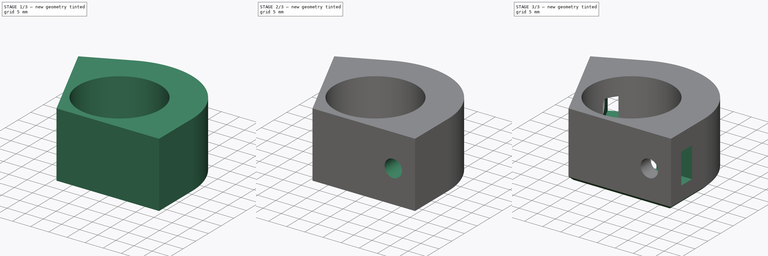
[diagram: build sequence overview — one tinted view per stage of 3, left to right]
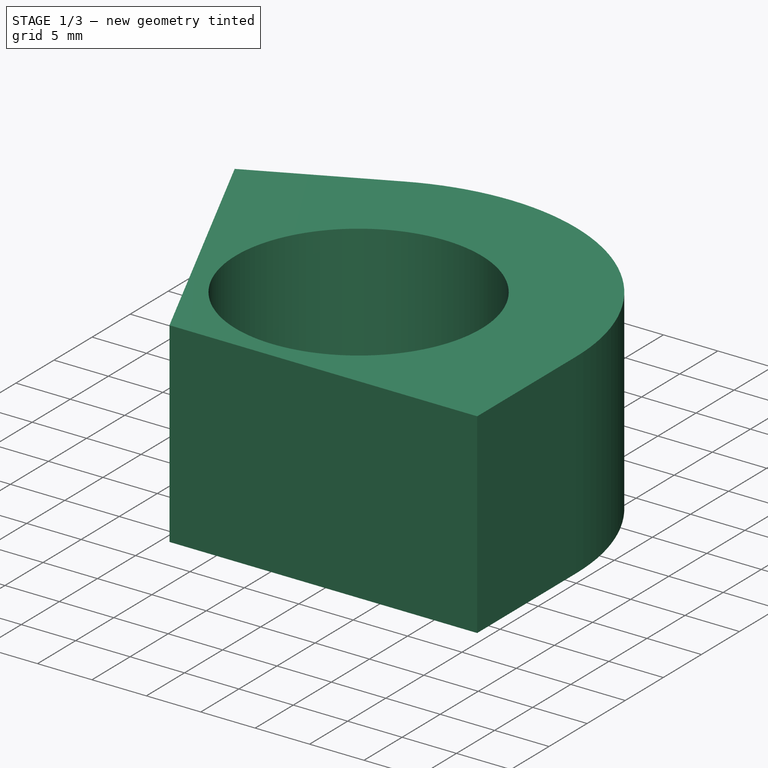
[diagram: stage 1 of 3 — iso view after this stage's code; geometry added in this stage tinted green]
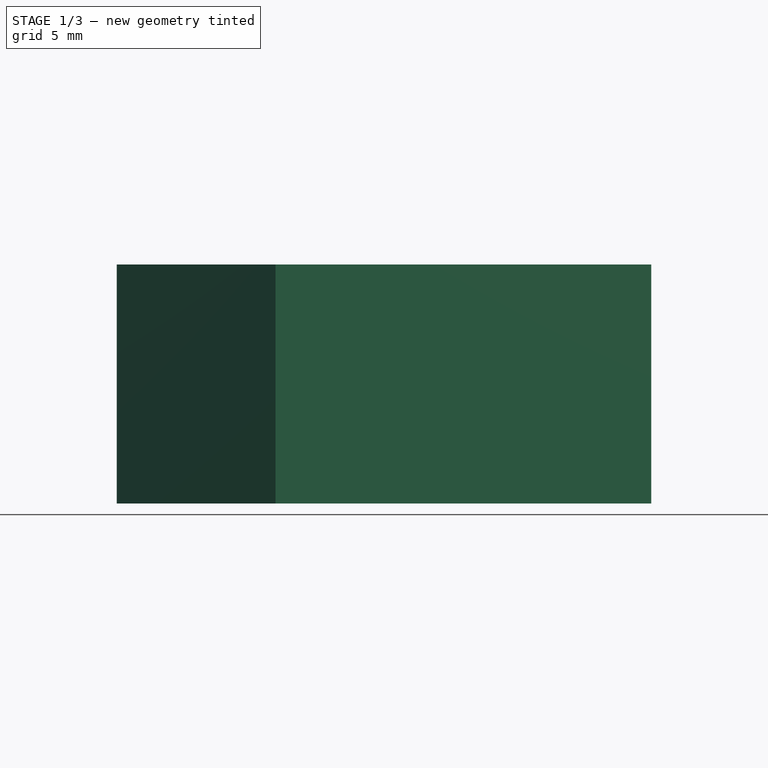
[diagram: stage 1 of 3 — front view after this stage's code; geometry added in this stage tinted green]
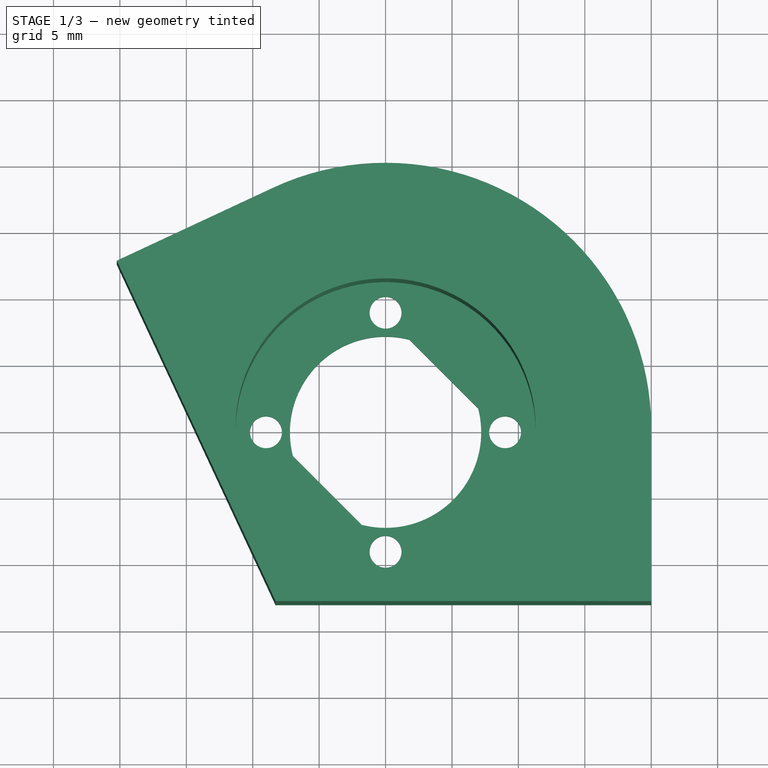
[diagram: stage 1 of 3 — top view after this stage's code; geometry added in this stage tinted green]
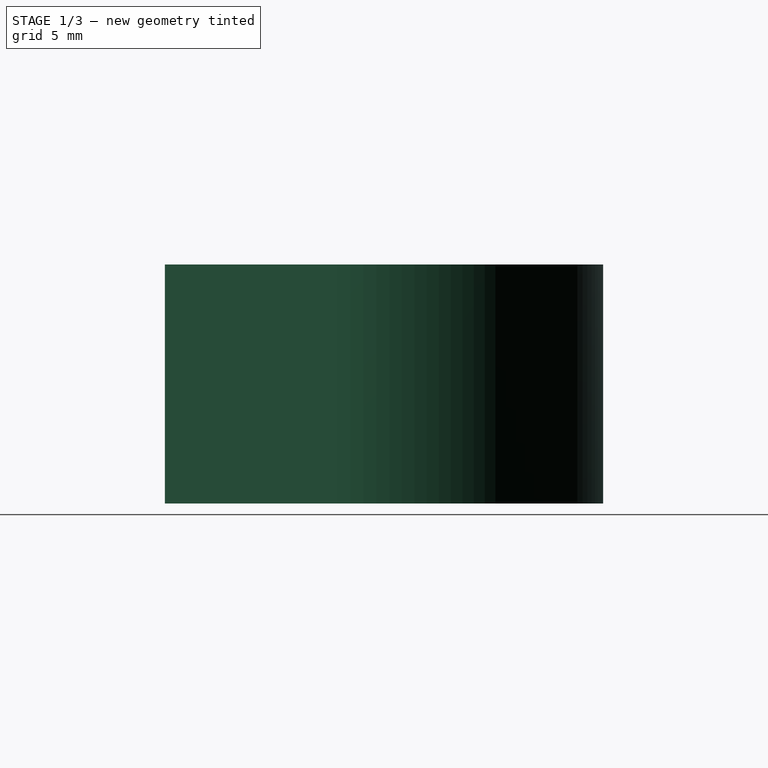
[diagram: stage 1 of 3 — right view after this stage's code; geometry added in this stage tinted green]
FCSTD DOCUMENT  (FreeCAD 0.19R24276 (Git))
Label: motormount
License: All rights reserved
LicenseURL: http://en.wikipedia.org/wiki/All_rights_reserved
objects: Sketcher::SketchObject×7, PartDesign::Pocket×6, PartDesign::Pad×1, PartDesign::Chamfer×1, PartDesign::Body×1
note: 24 computed .brp shape members not serialized (recipe doc carries the construction recipe); baked Part::Feature solids carry a one-line shape summary decoded from their .brp

FEATURE [Sketcher::SketchObject] Sketch
  FullyConstrained = false
  MapMode = 5
  Support = -> [XY_Plane]
  sketch-geometry (10):
    g0: Circle CenterX=0 CenterY=0 CenterZ=0 NormalX=0 NormalY=0 NormalZ=1 AngleXU=0 Radius=11
    g1: Circle CenterX=0 CenterY=9 CenterZ=0 NormalX=0 NormalY=0 NormalZ=1 AngleXU=0 Radius=1.2
    g2: Circle CenterX=0 CenterY=-9 CenterZ=0 NormalX=0 NormalY=0 NormalZ=1 AngleXU=0 Radius=1.2
    g3: Circle CenterX=9 CenterY=0 CenterZ=0 NormalX=0 NormalY=0 NormalZ=1 AngleXU=0 Radius=1.2
    g4: Circle CenterX=-9 CenterY=0 CenterZ=0 NormalX=0 NormalY=0 NormalZ=1 AngleXU=0 Radius=1.2
    g5: LineSegment StartX=-8.28191 StartY=-13 StartZ=0 EndX=-20.2344 EndY=12.6321 EndZ=0
    g6: LineSegment StartX=-8.28191 StartY=-13 StartZ=0 EndX=20 EndY=-13 EndZ=0
    g7: LineSegment StartX=-20.2344 StartY=12.6321 StartZ=0 EndX=-8.45237 EndY=18.1262 EndZ=0
    g8: LineSegment StartX=20 StartY=-13 StartZ=0 EndX=20 EndY=0 EndZ=0
    g9: ArcOfCircle CenterX=0 CenterY=0 CenterZ=0 NormalX=0 NormalY=0 NormalZ=1 AngleXU=0 Radius=20 StartAngle=0 EndAngle=2.00713
  constraints (29):
    c: Coincident(g0,g-1)
    c: Diameter(g0) = 22
    c: PointOnObject(g1,g-2)
    c: PointOnObject(g2,g-2)
    c: PointOnObject(g3,g-1)
    c: PointOnObject(g4,g-1)
    c: Diameter(g1) = 2.4
    c: Equal(g1,g4)
    c: Equal(g1,g2)
    c: Equal(g1,g3)
    c: Coincident(g5,g6)
    c: Horizontal(g6)
    c: Angle(g6,g5) = 2.00713
    c: DistanceY(g5,g-1) = 13
    c: Distance(g-1,g5) = 13
    c: Coincident(g7,g5)
    c: Coincident(g8,g6)
    c: Vertical(g8)
    c: Perpendicular(g5,g7)
    c: Distance(g7) = 13
    c: Distance(g8) = 13
    c: Coincident(g9,g-1)
    c: Coincident(g9,g7)
    c: Coincident(g9,g8)
    c: Radius(g9) = 20
    c: DistanceY(g9,g1) = 9
    c: DistanceY(g2,g9) = 9
    c: DistanceX(g4,g9) = 9
    c: DistanceX(g9,g3) = 9
FEATURE [PartDesign::Pad] Pad
  AllowMultiFace = false
  Direction = (1,1,1)
  Length = 18
  Length2 = 100
  Profile = -> Sketch
  Refine = true
  Type = 0
FEATURE [Sketcher::SketchObject] Sketch001  label="motorcutout"
  FullyConstrained = false
  MapMode = 5
  Placement = pos=(0,0,18) rot=(0,0,1;0rad)
  Support = -> [Pad]
  sketch-geometry (1):
    g0: Circle CenterX=0 CenterY=0 CenterZ=0 NormalX=0 NormalY=0 NormalZ=1 AngleXU=0 Radius=11.3
  constraints (2):
    c: Coincident(g0,g-1)
    c: Diameter(g0) = 22.6
FEATURE [Sketcher::SketchObject] Sketch002
  FullyConstrained = false
  MapMode = 5
  Support = -> [XY_Plane]
  sketch-geometry (4):
    g0: LineSegment StartX=-1.79563 StartY=-6.9725 StartZ=0 EndX=-6.9725 EndY=-1.79563 EndZ=0
    g1: LineSegment StartX=1.79563 StartY=6.9725 StartZ=0 EndX=6.9725 EndY=1.79563 EndZ=0
    g2: ArcOfCircle CenterX=0 CenterY=0 CenterZ=0 NormalX=0 NormalY=0 NormalZ=1 AngleXU=0 Radius=7.2 StartAngle=1.31874 EndAngle=3.39365
    g3: ArcOfCircle CenterX=0 CenterY=0 CenterZ=0 NormalX=0 NormalY=0 NormalZ=1 AngleXU=0 Radius=7.2 StartAngle=4.46034 EndAngle=6.53524
  constraints (12):
    c: Coincident(g2,g0)
    c: Coincident(g2,g1)
    c: Coincident(g3,g2)
    c: Coincident(g3,g1)
    c: Coincident(g3,g0)
    c: Radius(g2) = 7.2
    c: Equal(g2,g3)
    c: Coincident(g2,g-1)
    c: Angle(g1) = -0.785398
    c: Parallel(g1,g0)
    c: Distance(g2,g0) = 6.2
    c: Distance(g2,g1) = 6.2
FEATURE [PartDesign::Pocket] Pocket001
  AllowMultiFace = false
  BaseFeature = -> Pad
  Length = 5
  Length2 = 100
  Midplane = true
  Profile = -> Sketch002
  Refine = true
  Type = 1
FEATURE [PartDesign::Pocket] Pocket
  AllowMultiFace = false
  BaseFeature = -> Pocket001
  Length = 16.5
  Length2 = 100
  Profile = -> Sketch001
  Refine = true
  Type = 0
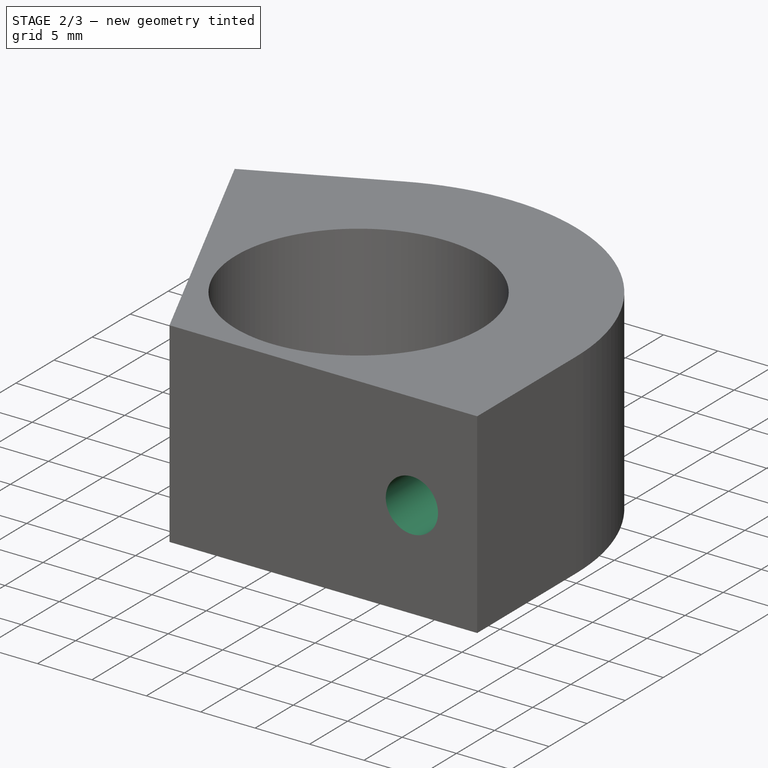
[diagram: stage 2 of 3 — iso view after this stage's code; geometry added in this stage tinted green]
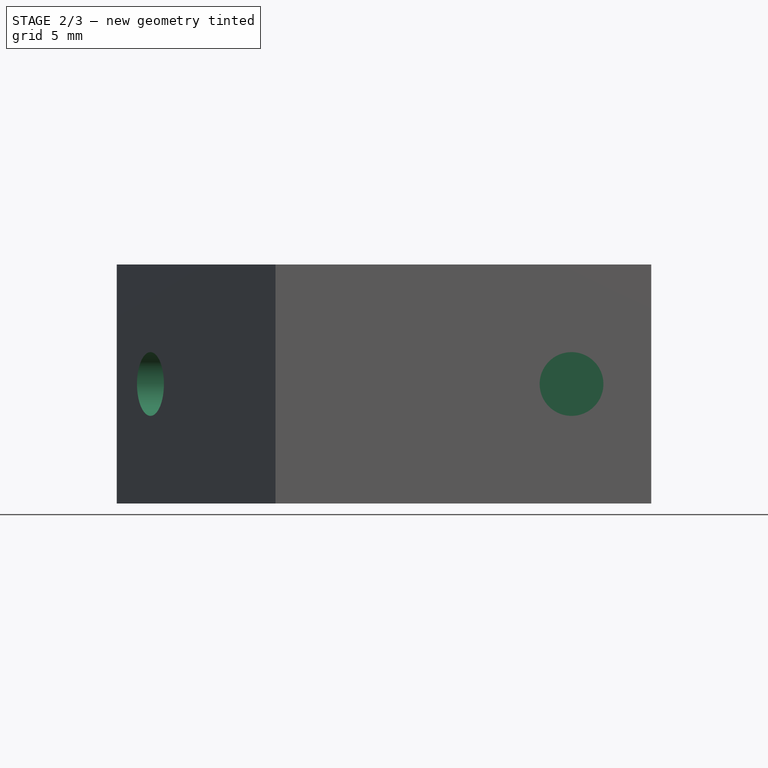
[diagram: stage 2 of 3 — front view after this stage's code; geometry added in this stage tinted green]
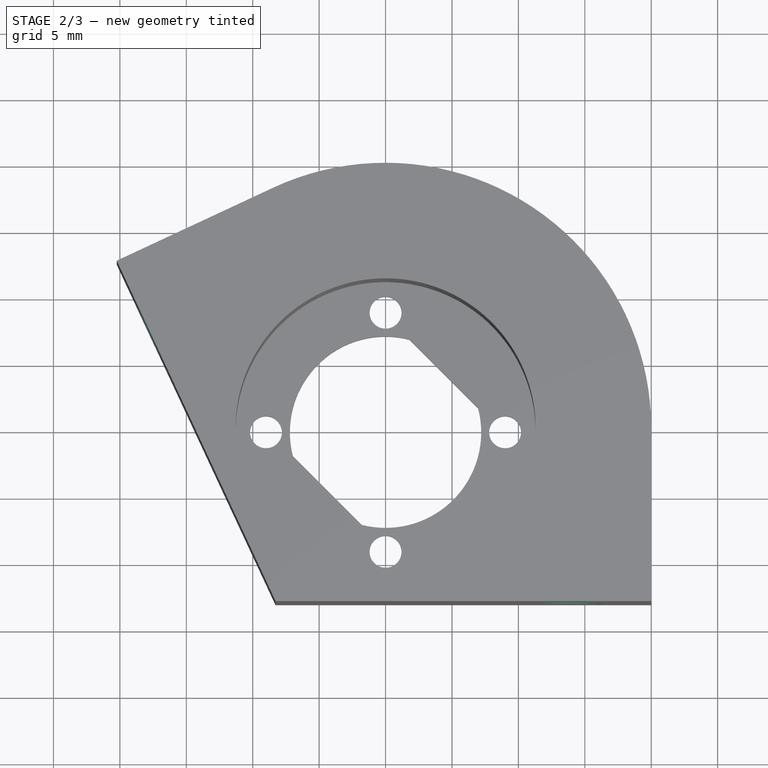
[diagram: stage 2 of 3 — top view after this stage's code; geometry added in this stage tinted green]
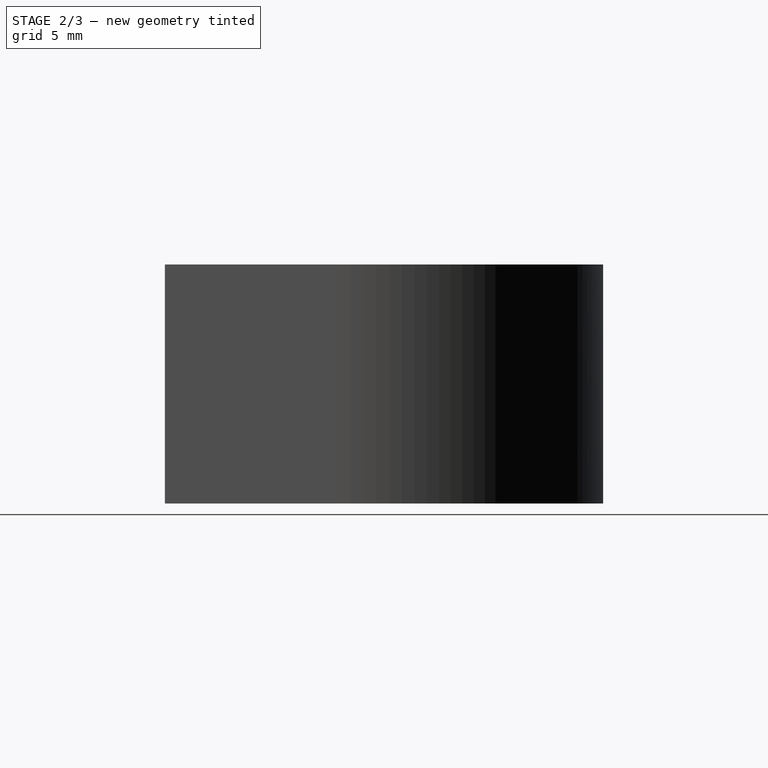
[diagram: stage 2 of 3 — right view after this stage's code; geometry added in this stage tinted green]
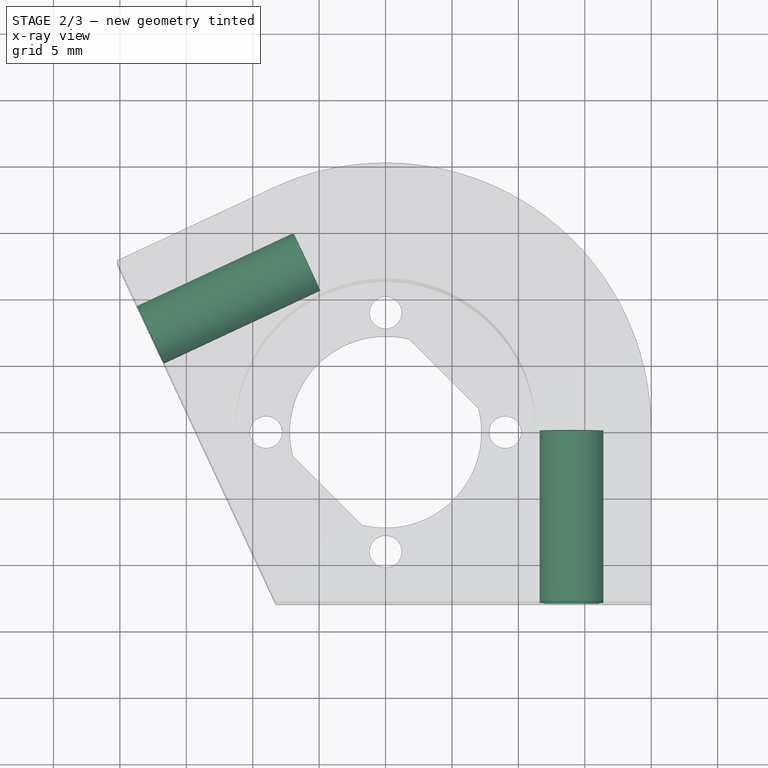
[diagram: stage 2 of 3 — x-ray composite at the top view; earlier geometry ghosted, this stage's added geometry solid]
FEATURE [Sketcher::SketchObject] Sketch003  label="screwhole1"
  ExternalGeometry = -> [Pocket]
  FullyConstrained = true
  MapMode = 5
  Placement = pos=(-11.782,-5.49404,0) rot=(0.742942,-0.473306,-0.473306;1.86366rad)
  Support = -> [Pocket]
  sketch-geometry (4):
    g0: Circle CenterX=-14 CenterY=9 CenterZ=0 NormalX=0 NormalY=0 NormalZ=1 AngleXU=0 Radius=2.4
    g1: GeomPoint X=-20 Y=9 Z=0
    g2: LineSegment StartX=-20 StartY=9 StartZ=0 EndX=-20 EndY=18 EndZ=0
    g3: LineSegment StartX=-20 StartY=9 StartZ=0 EndX=-20 EndY=3.6e-15 EndZ=0
  constraints (9):
    c: Radius(g0) = 2.4
    c: DistanceX(g-3,g0) = 6
    c: Coincident(g2,g1)
    c: Coincident(g2,g-3)
    c: Vertical(g2)
    c: Coincident(g3,g1)
    c: Equal(g2,g3)
    c: Coincident(g3,g-4)
    c: Horizontal(g0,g1)
FEATURE [PartDesign::Pocket] Pocket002
  AllowMultiFace = false
  BaseFeature = -> Pocket
  Length = 13
  Length2 = 100
  Profile = -> Sketch003
  Refine = true
  Type = 0
FEATURE [Sketcher::SketchObject] Sketch004  label="screwhole2"
  ExternalGeometry = -> [Pocket002]
  FullyConstrained = true
  MapMode = 5
  Placement = pos=(0,-13,0) rot=(1,0,0;1.5708rad)
  Support = -> [Pocket002]
  sketch-geometry (4):
    g0: Circle CenterX=14 CenterY=9 CenterZ=0 NormalX=0 NormalY=0 NormalZ=1 AngleXU=0 Radius=2.4
    g1: LineSegment StartX=20 StartY=9 StartZ=0 EndX=0 EndY=9 EndZ=0
    g2: LineSegment StartX=20 StartY=18 StartZ=0 EndX=20 EndY=9 EndZ=0
    g3: LineSegment StartX=20 StartY=9 StartZ=0 EndX=20 EndY=0 EndZ=0
  constraints (11):
    c: Radius(g0) = 2.4
    c: PointOnObject(g1,g-3)
    c: PointOnObject(g1,g-2)
    c: Horizontal(g1)
    c: Coincident(g2,g-3)
    c: Coincident(g2,g1)
    c: Coincident(g3,g1)
    c: Coincident(g3,g-3)
    c: Equal(g3,g2)
    c: PointOnObject(g0,g1)
    c: DistanceX(g0,g1) = 6
FEATURE [PartDesign::Pocket] Pocket003
  AllowMultiFace = false
  BaseFeature = -> Pocket002
  Length = 13
  Length2 = 100
  Profile = -> Sketch004
  Refine = true
  Type = 0
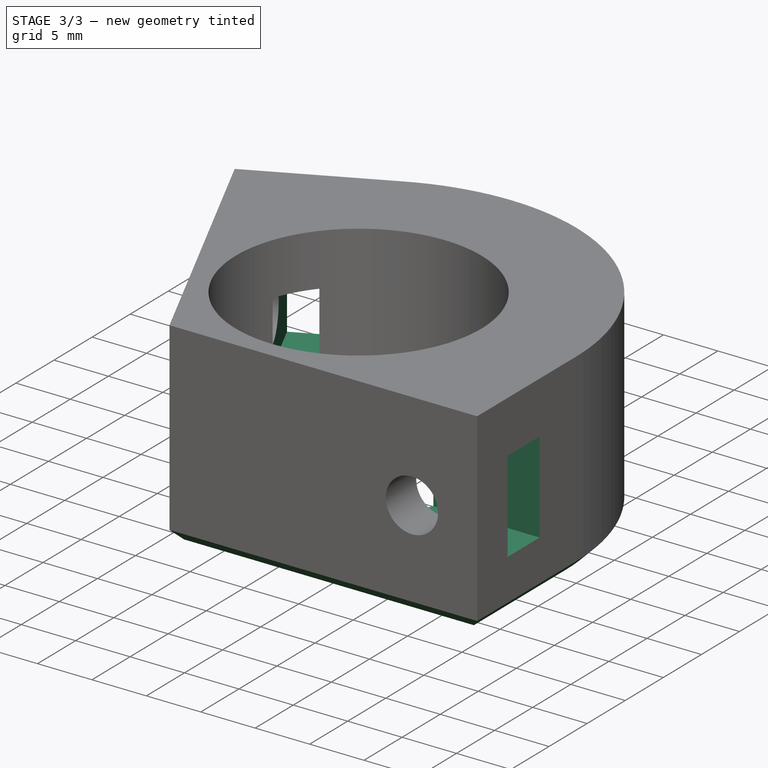
[diagram: stage 3 of 3 — iso view after this stage's code; geometry added in this stage tinted green]
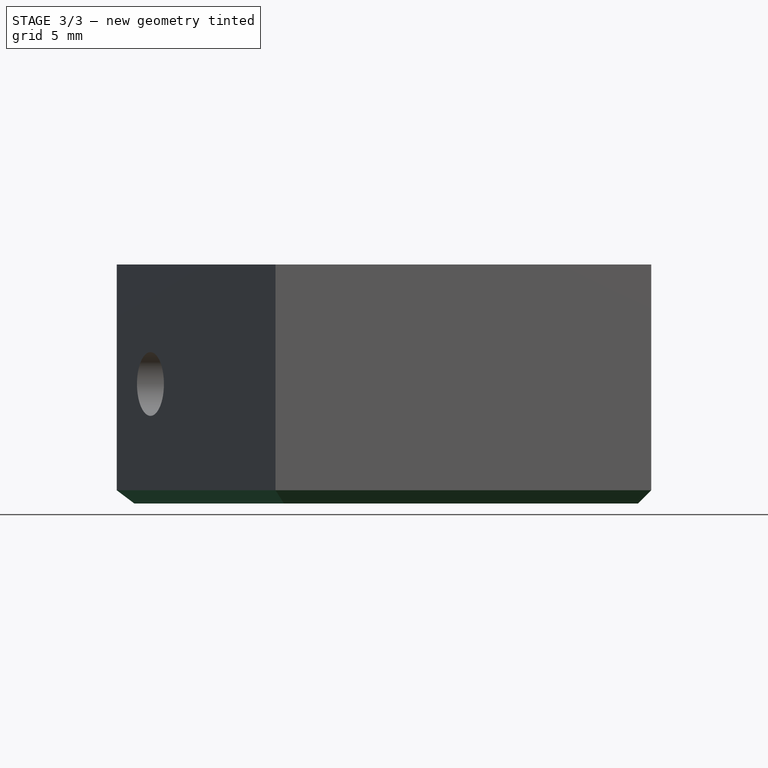
[diagram: stage 3 of 3 — front view after this stage's code; geometry added in this stage tinted green]
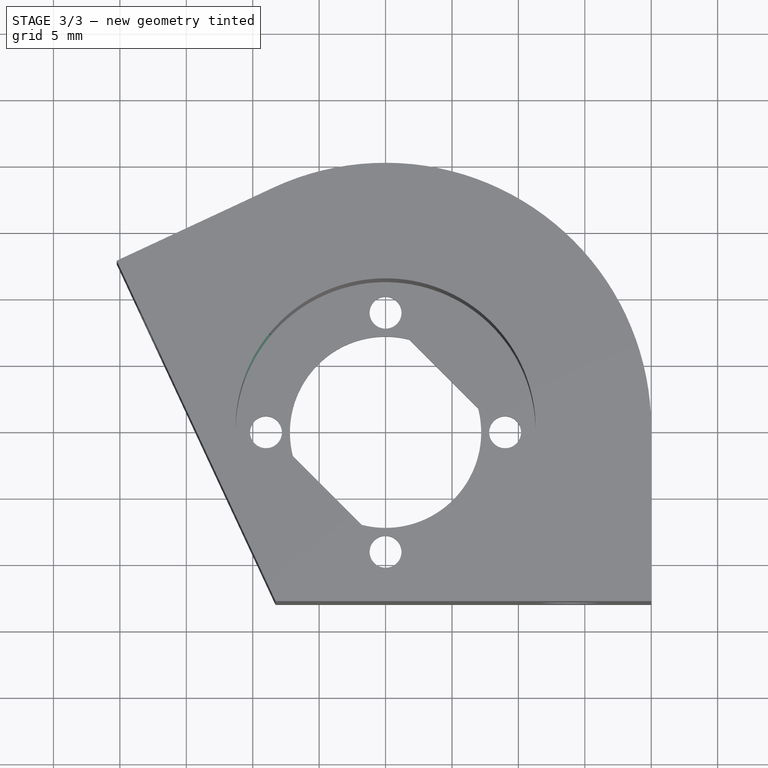
[diagram: stage 3 of 3 — top view after this stage's code; geometry added in this stage tinted green]
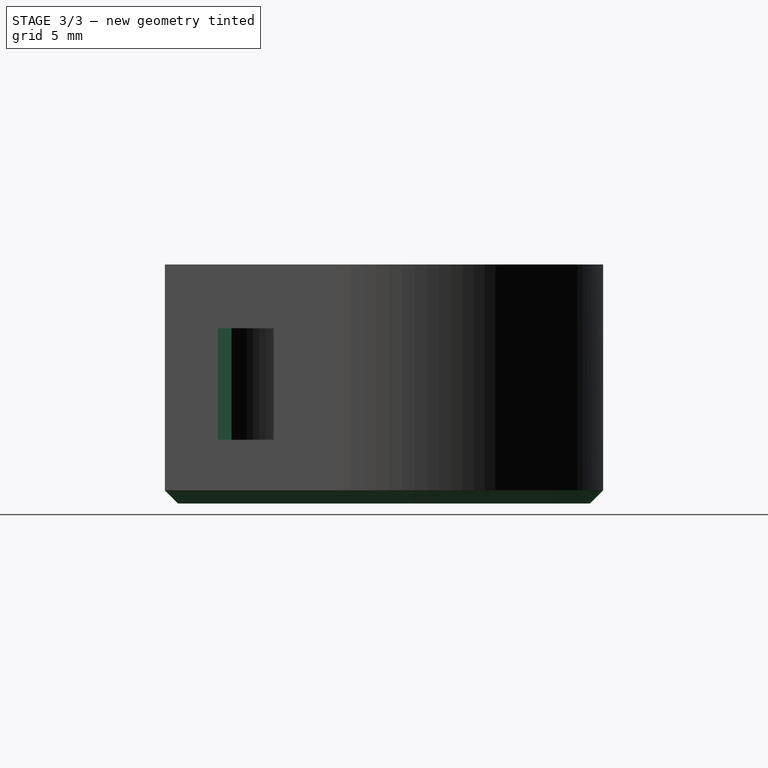
[diagram: stage 3 of 3 — right view after this stage's code; geometry added in this stage tinted green]
FEATURE [Sketcher::SketchObject] Sketch005  label="captivenut1"
  ExternalGeometry = -> [Pocket003]
  FullyConstrained = true
  MapMode = 5
  Placement = pos=(-8.45237,18.1262,0) rot=(-0.15487,0.698575,0.698575;3.44889rad)
  Support = -> [Pocket003]
  sketch-geometry (4):
    g0: LineSegment StartX=9 StartY=13.2 StartZ=0 EndX=4.8 EndY=13.2 EndZ=0
    g1: LineSegment StartX=4.8 StartY=13.2 StartZ=0 EndX=4.8 EndY=4.8 EndZ=0
    g2: LineSegment StartX=4.8 StartY=4.8 StartZ=0 EndX=9 EndY=4.8 EndZ=0
    g3: LineSegment StartX=9 StartY=4.8 StartZ=0 EndX=9 EndY=13.2 EndZ=0
  constraints (12):
    c: Coincident(g0,g1)
    c: Coincident(g1,g2)
    c: Coincident(g2,g3)
    c: Coincident(g3,g0)
    c: Horizontal(g0)
    c: Horizontal(g2)
    c: Vertical(g1)
    c: Vertical(g3)
    c: DistanceY(g-1,g1) = 4.8
    c: DistanceY(g0,g-3) = 4.8
    c: DistanceX(g0,g-3) = 4
    c: DistanceX(g0,g0) = 4.2
FEATURE [PartDesign::Pocket] Pocket004
  AllowMultiFace = false
  BaseFeature = -> Pocket003
  Length = 12
  Length2 = 100
  Profile = -> Sketch005
  Refine = true
  Type = 0
FEATURE [Sketcher::SketchObject] Sketch007  label="captivenut2"
  ExternalGeometry = -> [Pocket004]
  FullyConstrained = true
  MapMode = 5
  Placement = pos=(20,0,0) rot=(0.57735,0.57735,0.57735;2.0944rad)
  Support = -> [Pocket004]
  sketch-geometry (4):
    g0: LineSegment StartX=-9 StartY=13.2 StartZ=0 EndX=-4.8 EndY=13.2 EndZ=0
    g1: LineSegment StartX=-4.8 StartY=13.2 StartZ=0 EndX=-4.8 EndY=4.8 EndZ=0
    g2: LineSegment StartX=-4.8 StartY=4.8 StartZ=0 EndX=-9 EndY=4.8 EndZ=0
    g3: LineSegment StartX=-9 StartY=4.8 StartZ=0 EndX=-9 EndY=13.2 EndZ=0
  constraints (12):
    c: Coincident(g0,g1)
    c: Coincident(g1,g2)
    c: Coincident(g2,g3)
    c: Coincident(g3,g0)
    c: Horizontal(g0)
    c: Horizontal(g2)
    c: Vertical(g1)
    c: Vertical(g3)
    c: DistanceX(g-3,g0) = 4
    c: DistanceX(g0,g0) = 4.2
    c: DistanceY(g-1,g2) = 4.8
    c: DistanceY(g0,g-3) = 4.8
FEATURE [PartDesign::Pocket] Pocket005
  AllowMultiFace = false
  BaseFeature = -> Pocket004
  Length = 12
  Length2 = 100
  Profile = -> Sketch007
  Refine = true
  Type = 0
FEATURE [PartDesign::Chamfer] Chamfer
  Angle = 45
  Base = -> Pocket005 [Edge11,Edge12,Edge6,Edge2,Edge10]
  BaseFeature = -> Pocket005
  ChamferType = 0
  FlipDirection = false
  Size = 1
  Size2 = 1
  SupportTransform = false
FEATURE [PartDesign::Body] Body
  Group = -> [Sketch,Pad,Sketch001,Sketch002,Pocket001,Pocket,Sketch003,Pocket002,Sketch004,Pocket003,Sketch005,Pocket004,Sketch007,Pocket005,Chamfer]
  Origin = -> Origin
  Tip = -> Chamfer
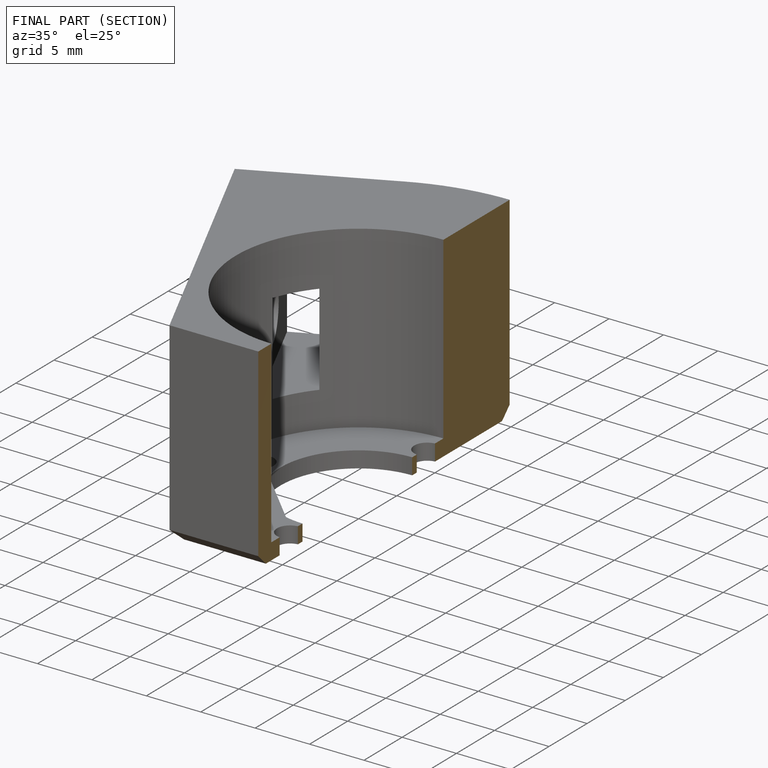
[diagram: finished part — half-section view (interior)]
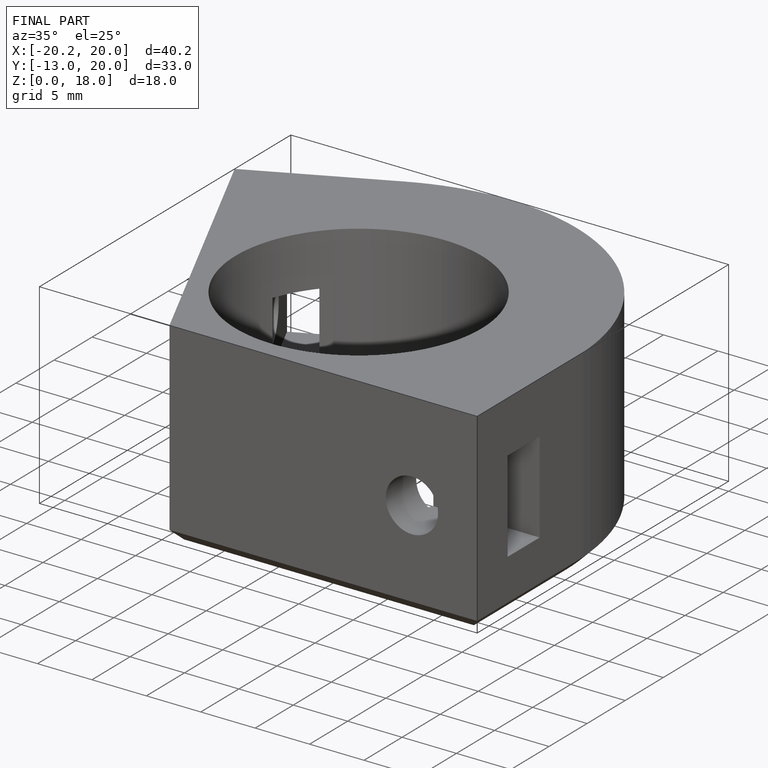
[diagram: finished part — iso view with bounding-box wireframe]
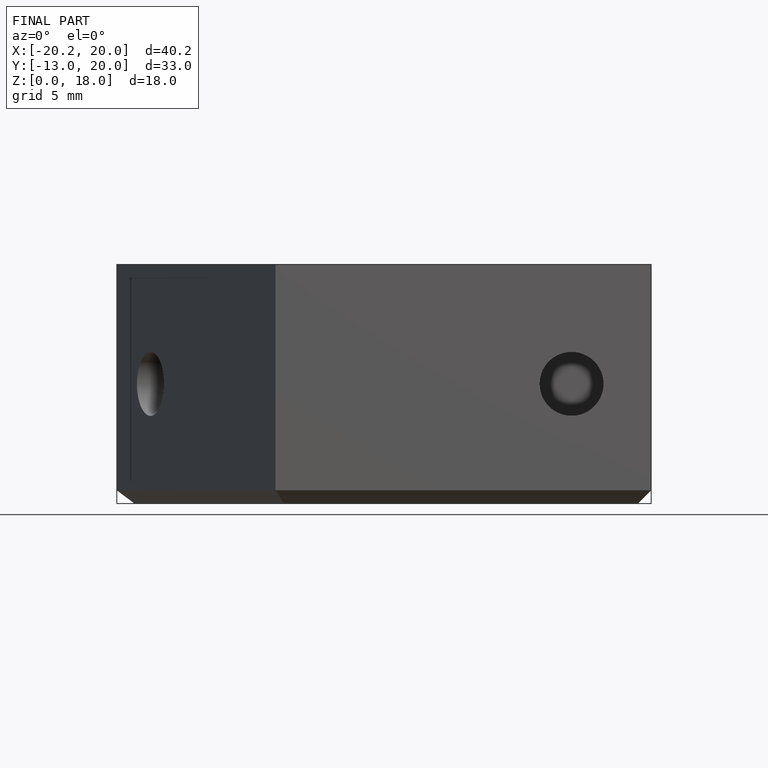
[diagram: finished part — front view with bounding-box wireframe]
